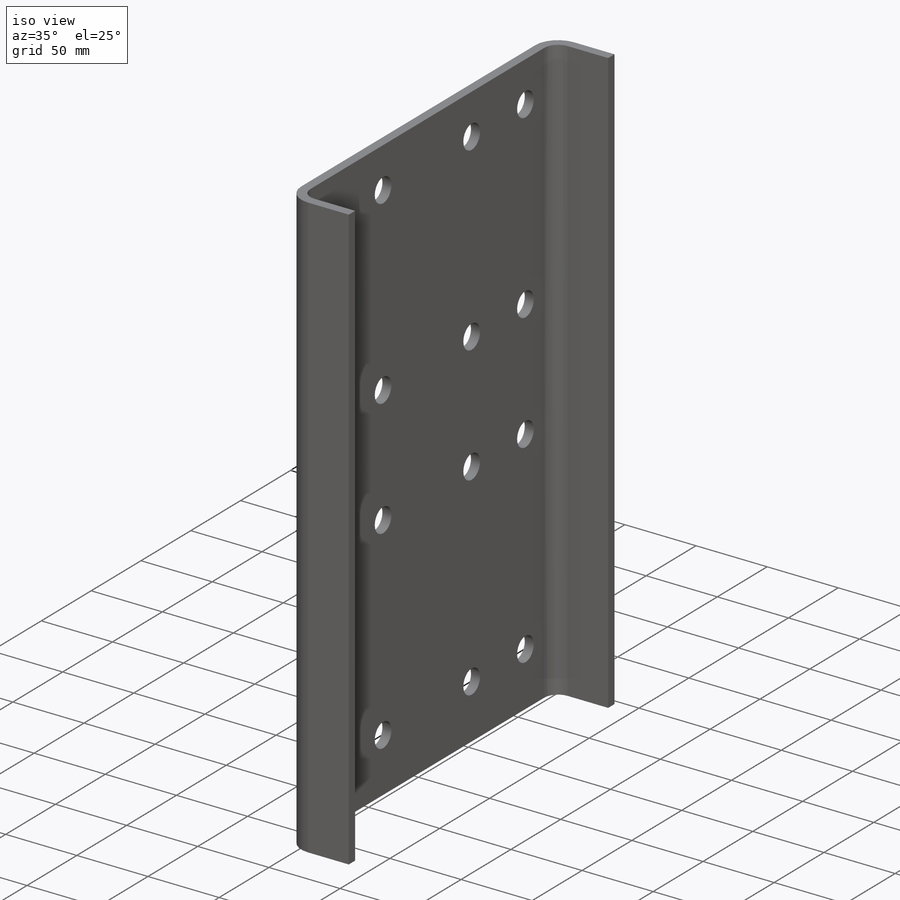
[diagram: iso view]
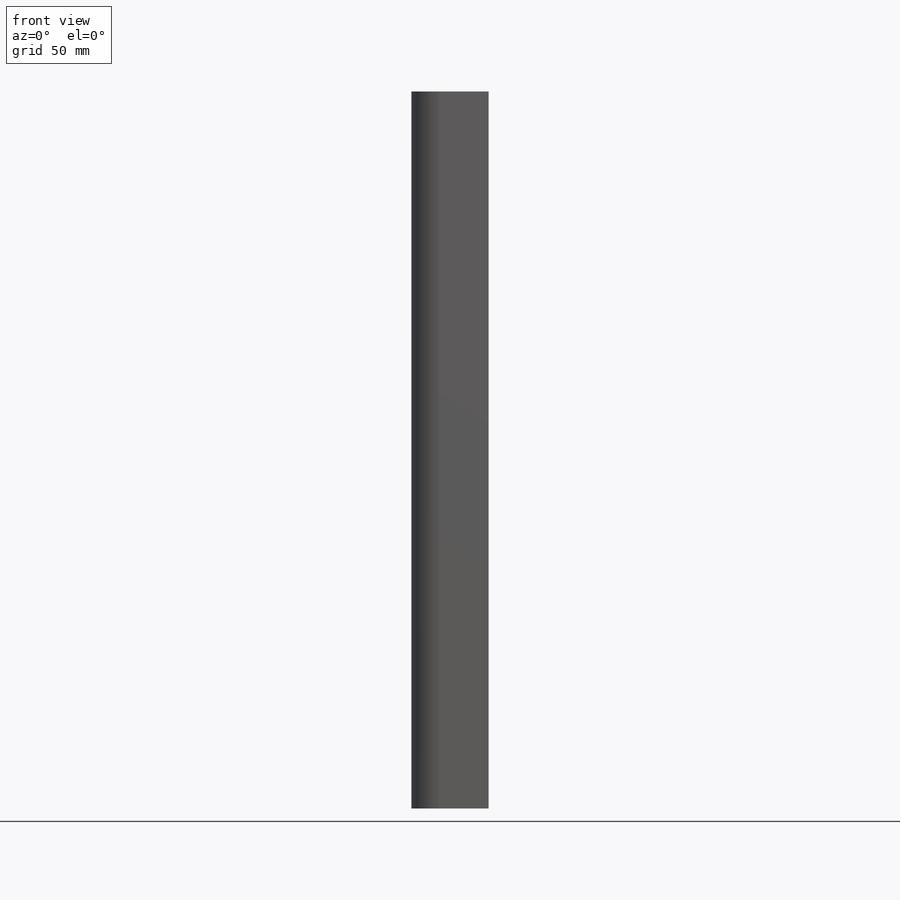
[diagram: front view]
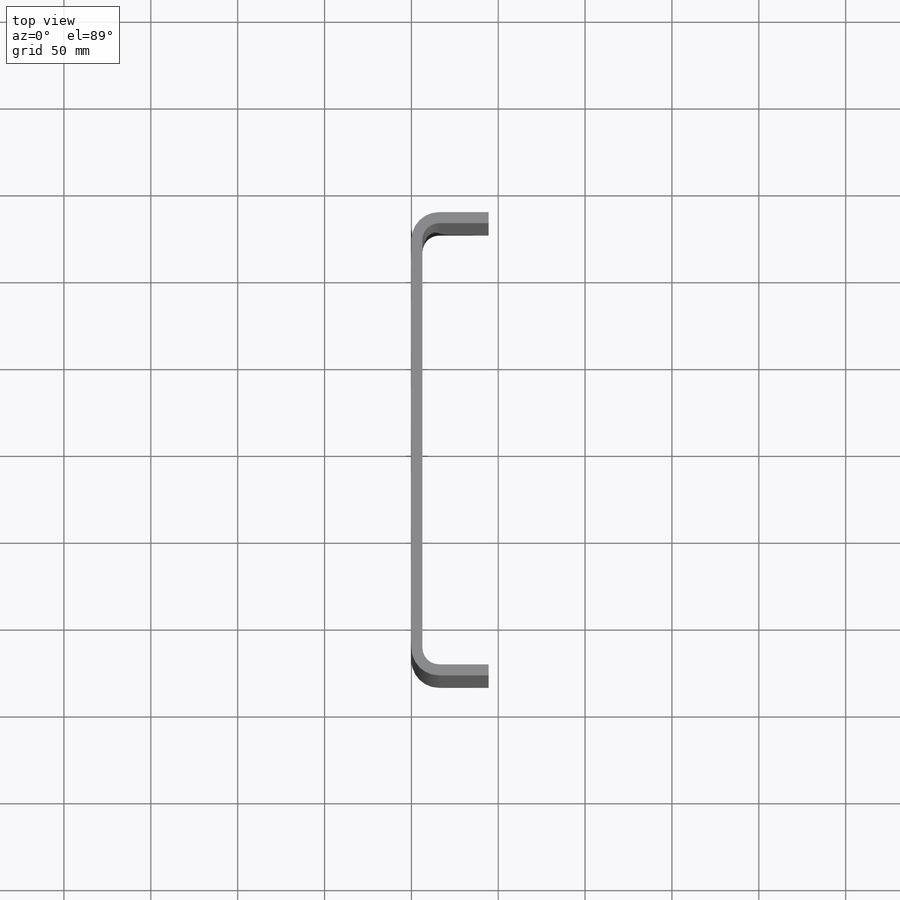
[diagram: top view]
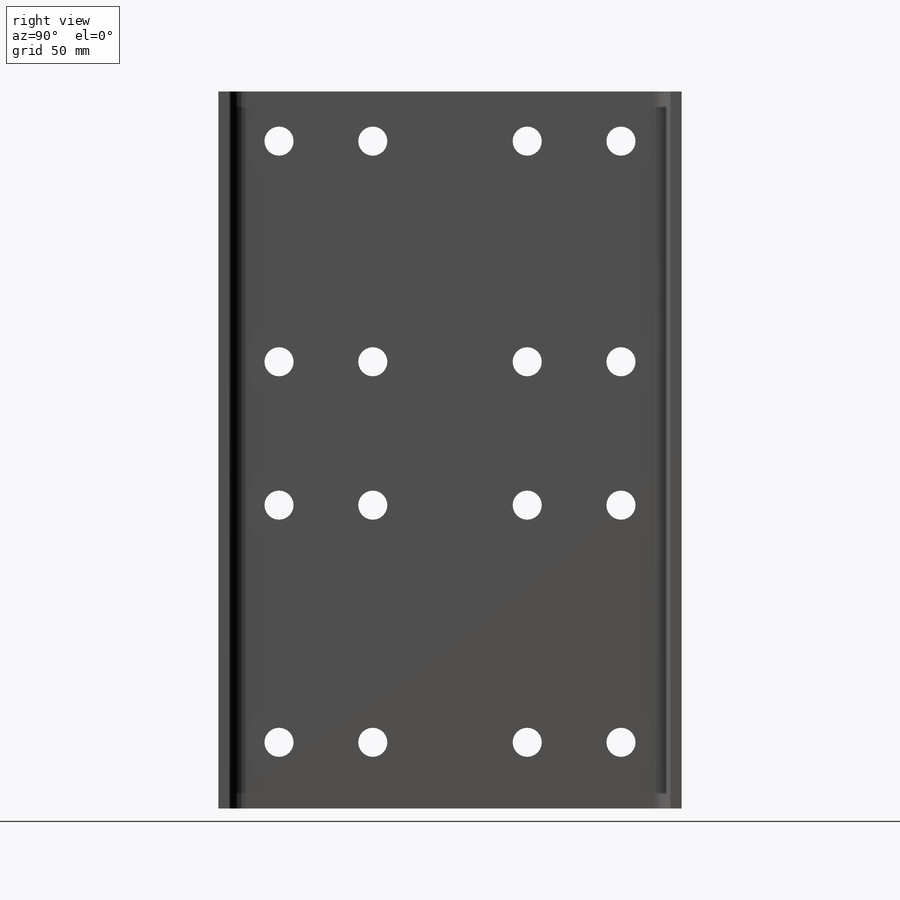
[diagram: right view]
SOLIDWORKS PART (.sldprt)
format: sldprt  version: not decoded by parser v0  size: 409,088 bytes
history: native  units: mm
features: cut_extrude x53, sketch x2, material x1, plane x1 (+11 scaffold rows collapsed)
feature tree (68):
  scaffold x11  (default folders/planes/origin — collapsed)
  material  "ASTM A36"
  plane  "Side"
  sketch  "Sketch1"  dims[c1.D1=15.875mm c1.D2=266.7mm c1.D3=44.45mm c2.D1=196.85mm c2.D2=215.9mm c2.D5=6.35mm c2.D6=1.0mm c2.D7=5.0mm]
  sketch  "Sketch3"  dims[c1.D10=25.4mm c1.D6=16.764mm c1.D1=0.0mm c1.D2=41.275mm c1.D3=168.275mm c1.D4=41.275mm c1.D5=177.8mm c2.D6=20.32mm c2.D7=0.0mm c2.D8=95.25mm c2.D9=98.425mm c2.D10=208.28mm c3.D8=44.45mm]
  cut_extrude  "holes"  Depth=0 RestraintType=0 Value=0mm cosRestraintComp:1=0mm cosRestraintComp:2=0mm cosRestraintComp:3=0mm cosRestraintComp:4=0mm cosRestraintComp:5=0mm cosRestraintComp:6=0mm Unit=3000mm AnalysisType=0mm MeshType=1000mm cosRestraintCompCheck1=0mm cosRestraintCompCheck2=0mm cosRestraintCompCheck3=0mm cosRestraintCompCheck4=0mm
  cut_extrude  "mid1:Material-1"  Depth=30463139000.0mm cosMaterialEX=30463139000.0mm cosMaterialNUXY=280mm cosMaterialGXY=11459943000.0mm cosMaterialALPX=0.007222mm cosMaterialDENS=278.1802mm cosMaterialKX=0.668937mm cosMaterialC=109.89011mm Units=1000mm AnalysisType=0mm MeshType=1000mm cosMaterialSIGYLD=90000007mm cosMaterialSIGXT=105000000mm cosMaterialSIGXC=0mm sMaterialSourceName=0mm sMaterialName=0mm
  cut_extrude  "mid1:Force-4"  Depth=955000mm cosForceComp:1=955000mm cosForceComp:2=1632000mm cosForceComp:3=0mm cosForceComp:4=0mm cosForceComp:5=0mm cosForceComp:6=0mm cosForceTorqueNF=1000mm cosForceCompCheck1=1000mm cosForceCompCheck2=1000mm cosForceCompCheck3=0mm cosForceCompCheck4=0mm cosForceCompCheck5=0mm cosForceCompCheck6=0mm Unit=1000mm AnalysisType=0mm
  cut_extrude  "mid1:Force-5"  Depth=955000mm cosForceComp:1=955000mm cosForceComp:2=-600000mm cosForceComp:3=0mm cosForceComp:4=0mm cosForceComp:5=0mm cosForceComp:6=0mm cosForceTorqueNF=1000mm cosForceCompCheck1=1000mm cosForceCompCheck2=1000mm cosForceCompCheck3=0mm cosForceCompCheck4=0mm cosForceCompCheck5=0mm cosForceCompCheck6=0mm Unit=1000mm AnalysisType=0mm
  cut_extrude  "mid1:Force-6"  Depth=955000mm cosForceComp:1=955000mm cosForceComp:2=-2832000mm cosForceComp:3=0mm cosForceComp:4=0mm cosForceComp:5=0mm cosForceComp:6=0mm cosForceTorqueNF=1000mm cosForceCompCheck1=1000mm cosForceCompCheck2=1000mm cosForceCompCheck3=0mm cosForceCompCheck4=0mm cosForceCompCheck5=0mm cosForceCompCheck6=0mm Unit=1000mm AnalysisType=0mm
  cut_extrude  "mid1:Force-7"  Depth=-1555000mm cosForceComp:1=-1555000mm cosForceComp:2=1632000mm cosForceComp:3=0mm cosForceComp:4=0mm cosForceComp:5=0mm cosForceComp:6=0mm cosForceTorqueNF=1000mm cosForceCompCheck1=1000mm cosForceCompCheck2=1000mm cosForceCompCheck3=0mm cosForceCompCheck4=0mm cosForceCompCheck5=0mm cosForceCompCheck6=0mm Unit=1000mm AnalysisType=0mm
  cut_extrude  "mid1:Force-8"  Depth=-1555000mm cosForceComp:1=-1555000mm cosForceComp:2=-600000mm cosForceComp:3=0mm cosForceComp:4=0mm cosForceComp:5=0mm cosForceComp:6=0mm cosForceTorqueNF=1000mm cosForceCompCheck1=1000mm cosForceCompCheck2=1000mm cosForceCompCheck3=0mm cosForceCompCheck4=0mm cosForceCompCheck5=0mm cosForceCompCheck6=0mm Unit=1000mm AnalysisType=0mm
  cut_extrude  "mid1:Force-9"  Depth=-1555000mm cosForceComp:1=-1555000mm cosForceComp:2=-2832000mm cosForceComp:3=0mm cosForceComp:4=0mm cosForceComp:5=0mm cosForceComp:6=0mm cosForceTorqueNF=1000mm cosForceCompCheck1=1000mm cosForceCompCheck2=1000mm cosForceCompCheck3=0mm cosForceCompCheck4=0mm cosForceCompCheck5=0mm cosForceCompCheck6=0mm Unit=1000mm AnalysisType=0mm
  cut_extrude  "mid1:Restraint-2"  Depth=1000mm RestraintType=1000mm Value=0mm cosRestraintComp:1=0mm cosRestraintComp:2=0mm cosRestraintComp:3=0mm cosRestraintComp:4=0mm cosRestraintComp:5=0mm cosRestraintComp:6=0mm Unit=3000mm AnalysisType=0mm MeshType=1000mm cosRestraintCompCheck1=0mm cosRestraintCompCheck2=0mm cosRestraintCompCheck3=0mm cosRestraintCompCheck4=0mm
  cut_extrude  "mid1:Restraint-3"  Depth=1000mm RestraintType=1000mm Value=0mm cosRestraintComp:1=0mm cosRestraintComp:2=0mm cosRestraintComp:3=0mm cosRestraintComp:4=0mm cosRestraintComp:5=0mm cosRestraintComp:6=0mm Unit=3000mm AnalysisType=0mm MeshType=1000mm cosRestraintCompCheck1=0mm cosRestraintCompCheck2=0mm cosRestraintCompCheck3=0mm cosRestraintCompCheck4=0mm
  cut_extrude  "mid1:Restraint-4"  Depth=1000mm RestraintType=1000mm Value=0mm cosRestraintComp:1=0mm cosRestraintComp:2=0mm cosRestraintComp:3=0mm cosRestraintComp:4=0mm cosRestraintComp:5=0mm cosRestraintComp:6=0mm Unit=3000mm AnalysisType=0mm MeshType=1000mm cosRestraintCompCheck1=0mm cosRestraintCompCheck2=0mm cosRestraintCompCheck3=0mm cosRestraintCompCheck4=0mm
  cut_extrude  "mid1:Restraint-5"  Depth=1000mm RestraintType=1000mm Value=0mm cosRestraintComp:1=0mm cosRestraintComp:2=0mm cosRestraintComp:3=0mm cosRestraintComp:4=0mm cosRestraintComp:5=0mm cosRestraintComp:6=0mm Unit=3000mm AnalysisType=0mm MeshType=1000mm cosRestraintCompCheck1=0mm cosRestraintCompCheck2=0mm cosRestraintCompCheck3=0mm cosRestraintCompCheck4=0mm
  cut_extrude  "mid1:Restraint-6"  Depth=1000mm RestraintType=1000mm Value=0mm cosRestraintComp:1=0mm cosRestraintComp:2=0mm cosRestraintComp:3=0mm cosRestraintComp:4=0mm cosRestraintComp:5=0mm cosRestraintComp:6=0mm Unit=3000mm AnalysisType=0mm MeshType=1000mm cosRestraintCompCheck1=0mm cosRestraintCompCheck2=0mm cosRestraintCompCheck3=0mm cosRestraintCompCheck4=0mm
  cut_extrude  "mid1:Restraint-7"  Depth=1000mm RestraintType=1000mm Value=0mm cosRestraintComp:1=0mm cosRestraintComp:2=0mm cosRestraintComp:3=0mm cosRestraintComp:4=0mm cosRestraintComp:5=0mm cosRestraintComp:6=0mm Unit=3000mm AnalysisType=0mm MeshType=1000mm cosRestraintCompCheck1=0mm cosRestraintCompCheck2=0mm cosRestraintCompCheck3=0mm cosRestraintCompCheck4=0mm
  cut_extrude  "sld1:Force-1"  Depth=955000mm cosForceComp:1=955000mm cosForceComp:2=1632000mm cosForceComp:3=0mm cosForceComp:4=0mm cosForceComp:5=0mm cosForceComp:6=0mm cosForceTorqueNF=1000mm cosForceCompCheck1=1000mm cosForceCompCheck2=1000mm cosForceCompCheck3=0mm cosForceCompCheck4=0mm cosForceCompCheck5=0mm cosForceCompCheck6=0mm Unit=1000mm AnalysisType=0mm
  cut_extrude  "sld1:Force-2"  Depth=955000mm cosForceComp:1=955000mm cosForceComp:2=-600000mm cosForceComp:3=0mm cosForceComp:4=0mm cosForceComp:5=0mm cosForceComp:6=0mm cosForceTorqueNF=1000mm cosForceCompCheck1=1000mm cosForceCompCheck2=1000mm cosForceCompCheck3=0mm cosForceCompCheck4=0mm cosForceCompCheck5=0mm cosForceCompCheck6=0mm Unit=1000mm AnalysisType=0mm
  cut_extrude  "sld1:Force-3"  Depth=955000mm cosForceComp:1=955000mm cosForceComp:2=-2832000mm cosForceComp:3=0mm cosForceComp:4=0mm cosForceComp:5=0mm cosForceComp:6=0mm cosForceTorqueNF=1000mm cosForceCompCheck1=1000mm cosForceCompCheck2=1000mm cosForceCompCheck3=0mm cosForceCompCheck4=0mm cosForceCompCheck5=0mm cosForceCompCheck6=0mm Unit=1000mm AnalysisType=0mm
  cut_extrude  "sld1:Force-4"  Depth=-1555000mm cosForceComp:1=-1555000mm cosForceComp:2=1632000mm cosForceComp:3=0mm cosForceComp:4=0mm cosForceComp:5=0mm cosForceComp:6=0mm cosForceTorqueNF=1000mm cosForceCompCheck1=1000mm cosForceCompCheck2=1000mm cosForceCompCheck3=0mm cosForceCompCheck4=0mm cosForceCompCheck5=0mm cosForceCompCheck6=0mm Unit=1000mm AnalysisType=0mm
  cut_extrude  "sld1:Force-5"  Depth=-1555000mm cosForceComp:1=-1555000mm cosForceComp:2=-600000mm cosForceComp:3=0mm cosForceComp:4=0mm cosForceComp:5=0mm cosForceComp:6=0mm cosForceTorqueNF=1000mm cosForceCompCheck1=1000mm cosForceCompCheck2=1000mm cosForceCompCheck3=0mm cosForceCompCheck4=0mm cosForceCompCheck5=0mm cosForceCompCheck6=0mm Unit=1000mm AnalysisType=0mm
  cut_extrude  "sld1:Force-6"  Depth=-1555000mm cosForceComp:1=-1555000mm cosForceComp:2=-2832000mm cosForceComp:3=0mm cosForceComp:4=0mm cosForceComp:5=0mm cosForceComp:6=0mm cosForceTorqueNF=1000mm cosForceCompCheck1=1000mm cosForceCompCheck2=1000mm cosForceCompCheck3=0mm cosForceCompCheck4=0mm cosForceCompCheck5=0mm cosForceCompCheck6=0mm Unit=1000mm AnalysisType=0mm
  cut_extrude  "sld1:Restraint-1"  Depth=1000mm RestraintType=1000mm Value=0mm cosRestraintComp:1=0mm cosRestraintComp:2=0mm cosRestraintComp:3=0mm cosRestraintComp:4=0mm cosRestraintComp:5=0mm cosRestraintComp:6=0mm Unit=3000mm AnalysisType=0mm MeshType=0mm cosRestraintCompCheck1=1000mm cosRestraintCompCheck2=1000mm cosRestraintCompCheck3=1000mm cosRestraintCompCheck4=0mm
  cut_extrude  "sld1:Restraint-2"  Depth=1000mm RestraintType=1000mm Value=0mm cosRestraintComp:1=0mm cosRestraintComp:2=0mm cosRestraintComp:3=0mm cosRestraintComp:4=0mm cosRestraintComp:5=0mm cosRestraintComp:6=0mm Unit=3000mm AnalysisType=0mm MeshType=0mm cosRestraintCompCheck1=1000mm cosRestraintCompCheck2=1000mm cosRestraintCompCheck3=1000mm cosRestraintCompCheck4=0mm
  cut_extrude  "sld1:Restraint-3"  Depth=1000mm RestraintType=1000mm Value=0mm cosRestraintComp:1=0mm cosRestraintComp:2=0mm cosRestraintComp:3=0mm cosRestraintComp:4=0mm cosRestraintComp:5=0mm cosRestraintComp:6=0mm Unit=3000mm AnalysisType=0mm MeshType=0mm cosRestraintCompCheck1=1000mm cosRestraintCompCheck2=1000mm cosRestraintCompCheck3=1000mm cosRestraintCompCheck4=0mm
  cut_extrude  "sld1:Restraint-4"  Depth=1000mm RestraintType=1000mm Value=0mm cosRestraintComp:1=0mm cosRestraintComp:2=0mm cosRestraintComp:3=0mm cosRestraintComp:4=0mm cosRestraintComp:5=0mm cosRestraintComp:6=0mm Unit=3000mm AnalysisType=0mm MeshType=0mm cosRestraintCompCheck1=1000mm cosRestraintCompCheck2=1000mm cosRestraintCompCheck3=1000mm cosRestraintCompCheck4=0mm
  cut_extrude  "sld1:Restraint-5"  Depth=1000mm RestraintType=1000mm Value=0mm cosRestraintComp:1=0mm cosRestraintComp:2=0mm cosRestraintComp:3=0mm cosRestraintComp:4=0mm cosRestraintComp:5=0mm cosRestraintComp:6=0mm Unit=3000mm AnalysisType=0mm MeshType=0mm cosRestraintCompCheck1=1000mm cosRestraintCompCheck2=1000mm cosRestraintCompCheck3=1000mm cosRestraintCompCheck4=0mm
  cut_extrude  "sld1:Restraint-6"  Depth=1000mm RestraintType=1000mm Value=0mm cosRestraintComp:1=0mm cosRestraintComp:2=0mm cosRestraintComp:3=0mm cosRestraintComp:4=0mm cosRestraintComp:5=0mm cosRestraintComp:6=0mm Unit=3000mm AnalysisType=0mm MeshType=0mm cosRestraintCompCheck1=1000mm cosRestraintCompCheck2=1000mm cosRestraintCompCheck3=1000mm cosRestraintCompCheck4=0mm
  cut_extrude  "sld1:Material-1"  Depth=30463139000.0mm cosMaterialEX=30463139000.0mm cosMaterialNUXY=280mm cosMaterialGXY=11459943000.0mm cosMaterialALPX=0.007222mm cosMaterialDENS=278.1802mm cosMaterialKX=0.668937mm cosMaterialC=109.89011mm Units=1000mm AnalysisType=0mm MeshType=0mm cosMaterialSIGYLD=90000007mm cosMaterialSIGXT=105000000mm cosMaterialSIGXC=0mm sMaterialSourceName=0mm sMaterialName=0mm
  cut_extrude  "FaceID-1"  Depth=1000mm faceID=1000mm cosFaceID=0
  cut_extrude  "FaceID-2"  Depth=2000mm faceID=2000mm
  cut_extrude  "FaceID-3"  Depth=3000mm faceID=3000mm
  cut_extrude  "FaceID-4"  Depth=4000mm faceID=4000mm
  cut_extrude  "FaceID-5"  Depth=5000mm faceID=5000mm
  cut_extrude  "FaceID-6"  Depth=6000mm faceID=6000mm
  cut_extrude  "FaceID-7"  Depth=7000mm faceID=7000mm
  cut_extrude  "FaceID-8"  Depth=8000mm faceID=8000mm
  cut_extrude  "FaceID-9"  Depth=9000mm faceID=9000mm
  cut_extrude  "FaceID-10"  Depth=10000mm faceID=10000mm
  cut_extrude  "FaceID-11"  Depth=11000mm faceID=11000mm
  cut_extrude  "FaceID-12"  Depth=12000mm faceID=12000mm
  cut_extrude  "FaceID-13"  Depth=13000mm faceID=13000mm
  cut_extrude  "FaceID-14"  Depth=14000mm faceID=14000mm
  cut_extrude  "FaceID-15"  Depth=15000mm faceID=15000mm
  cut_extrude  "FaceID-16"  Depth=16000mm faceID=16000mm
  cut_extrude  "FaceID-17"  Depth=17000mm faceID=17000mm
  cut_extrude  "FaceID-18"  Depth=18000mm faceID=18000mm
  cut_extrude  "FaceID-19"  Depth=19000mm faceID=19000mm
  cut_extrude  "FaceID-20"  Depth=20000mm faceID=20000mm
  cut_extrude  "FaceID-21"  Depth=21000mm faceID=21000mm
  cut_extrude  "FaceID-22"  Depth=22000mm faceID=22000mm
  cut_extrude  "FaceID-23"  Depth=23000mm faceID=23000mm
  cut_extrude  "FaceID-24"  Depth=24000mm faceID=24000mm
  cut_extrude  "FaceID-25"  Depth=25000mm faceID=25000mm
  cut_extrude  "FaceID-26"  Depth=26000mm faceID=26000mm
decode coverage: 55 of 55 modeling features carry decoded parameters
note: suppression state not decoded; provenance and decode notes live in map.json
